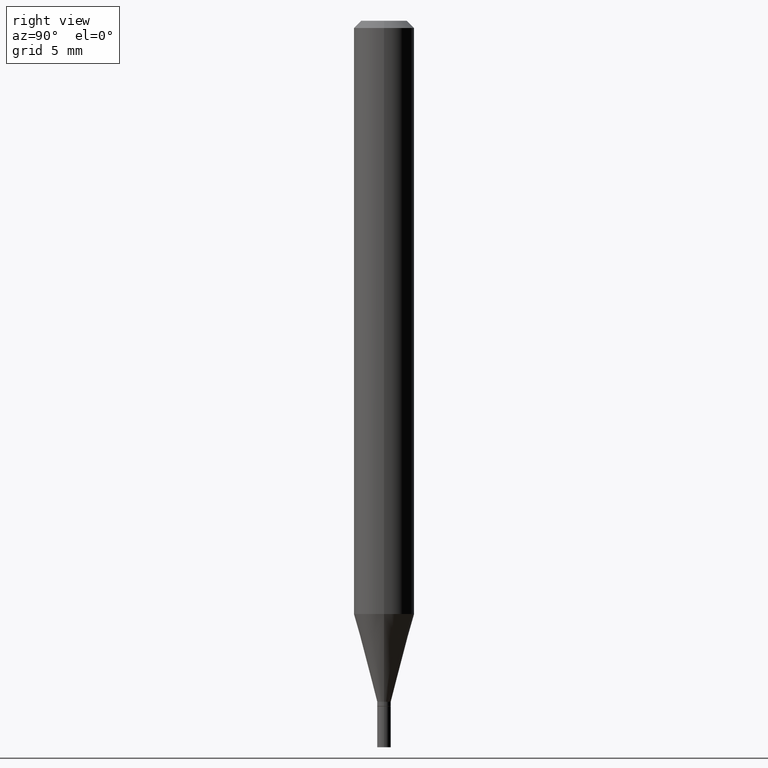
[diagram: clean part render]
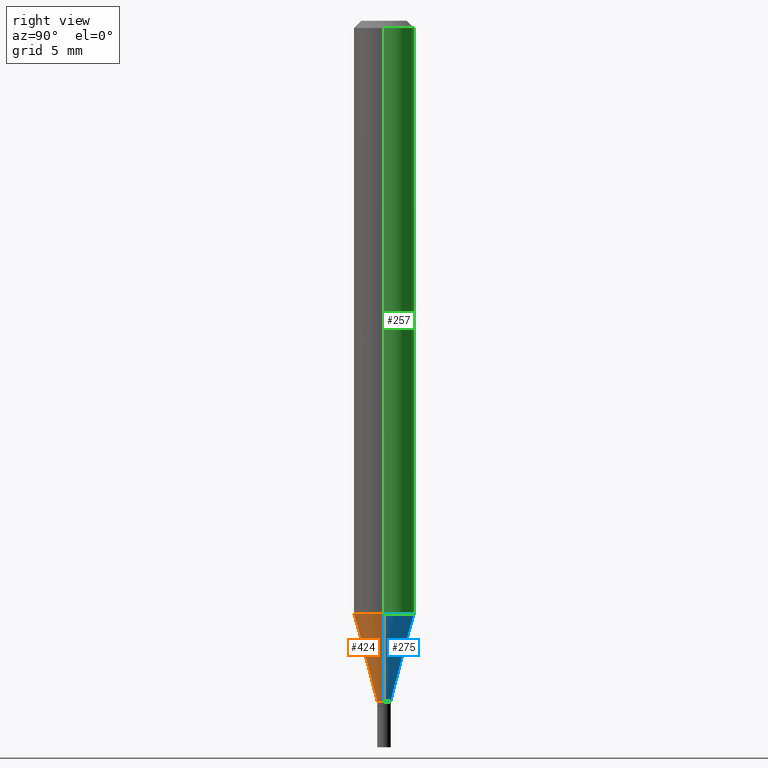
[diagram: same view with three faces highlighted in distinct colors, each labeled with its STEP entity id]
A machine part, right view with three faces highlighted in distinct colors.
Their STEP definitions:

[orange] entity #424 — the highlighted conical surface has half-angle 15 deg.
#8 = LINE ( 'NONE', #44, #34 ) ;
#14 = CARTESIAN_POINT ( 'NONE',  ( -0.06250000000000000000, -3.832959843676702294E-15, -1.224995535832909876 ) ) ;
#19 = EDGE_CURVE ( 'NONE', #153, #350, #237, .T. ) ;
#30 = EDGE_CURVE ( 'NONE', #153, #240, #8, .T. ) ;
#34 = VECTOR ( 'NONE', #402, 39.37007874015747433 ) ;
#43 = CONICAL_SURFACE ( 'NONE', #81, 0.01399999999999992223, 0.2617993877991500740 ) ;
#44 = CARTESIAN_POINT ( 'NONE',  ( -0.01399999999999992223, -4.809546779407050347E-15, -1.406000000000000139 ) ) ;
#48 = CARTESIAN_POINT ( 'NONE',  ( 2.995688370595427801E-29, -4.277049053526764910E-15, -1.224995535832909876 ) ) ;
#69 = VECTOR ( 'NONE', #299, 39.37007874015747433 ) ;
#81 = AXIS2_PLACEMENT_3D ( 'NONE', #256, #380, #363 ) ;
#103 = ORIENTED_EDGE ( 'NONE', *, *, #19, .T. ) ;
#121 = EDGE_CURVE ( 'NONE', #240, #172, #278, .T. ) ;
#136 = EDGE_LOOP ( 'NONE', ( #465, #103, #191, #384 ) ) ;
#153 = VERTEX_POINT ( 'NONE', #231 ) ;
#157 = AXIS2_PLACEMENT_3D ( 'NONE', #328, #330, #183 ) ;
#161 = CARTESIAN_POINT ( 'NONE',  ( 0.06250000000000000000, -4.713484220882155791E-15, -1.224995535832909876 ) ) ;
#164 = EDGE_CURVE ( 'NONE', #350, #172, #192, .T. ) ;
#169 = AXIS2_PLACEMENT_3D ( 'NONE', #48, #400, #218 ) ;
#172 = VERTEX_POINT ( 'NONE', #161 ) ;
#183 = DIRECTION ( 'NONE',  ( 1.000000000000000000, -6.982962677686232790E-15, 0.000000000000000000 ) ) ;
#191 = ORIENTED_EDGE ( 'NONE', *, *, #164, .T. ) ;
#192 = LINE ( 'NONE', #232, #69 ) ;
#218 = DIRECTION ( 'NONE',  ( 1.000000000000000000, -6.982962677686270655E-15, 0.000000000000000000 ) ) ;
#231 = CARTESIAN_POINT ( 'NONE',  ( -0.01399999999999992223, -4.321253311541875926E-15, -1.406000000000000139 ) ) ;
#232 = CARTESIAN_POINT ( 'NONE',  ( 0.01399999999999992223, -5.006784239901070239E-15, -1.406000000000000139 ) ) ;
#237 = CIRCLE ( 'NONE', #157, 0.01399999999999992223 ) ;
#240 = VERTEX_POINT ( 'NONE', #14 ) ;
#256 = CARTESIAN_POINT ( 'NONE',  ( 3.438329141496302499E-29, -4.909022762413463673E-15, -1.406000000000000139 ) ) ;
#278 = CIRCLE ( 'NONE', #169, 0.06250000000000000000 ) ;
#299 = DIRECTION ( 'NONE',  ( 0.2588190451025213501, 1.565188264969621968E-15, 0.9659258262890682012 ) ) ;
#328 = CARTESIAN_POINT ( 'NONE',  ( 3.438329141496302499E-29, -4.909022762413463673E-15, -1.406000000000000139 ) ) ;
#330 = DIRECTION ( 'NONE',  ( -2.445468806185136597E-29, 3.491481338843145583E-15, 1.000000000000000000 ) ) ;
#350 = VERTEX_POINT ( 'NONE', #383 ) ;
#363 = DIRECTION ( 'NONE',  ( 1.000000000000000000, -6.982962677686232790E-15, 0.000000000000000000 ) ) ;
#380 = DIRECTION ( 'NONE',  ( -2.445468806185136597E-29, 3.491481338843145583E-15, 1.000000000000000000 ) ) ;
#383 = CARTESIAN_POINT ( 'NONE',  ( 0.01399999999999992223, -5.006784239901070239E-15, -1.406000000000000139 ) ) ;
#384 = ORIENTED_EDGE ( 'NONE', *, *, #121, .F. ) ;
#396 = FACE_OUTER_BOUND ( 'NONE', #136, .T. ) ;
#400 = DIRECTION ( 'NONE',  ( -2.445468806185136597E-29, 3.491481338843145583E-15, 1.000000000000000000 ) ) ;
#402 = DIRECTION ( 'NONE',  ( -0.2588190451025213501, 5.211531920934551042E-15, 0.9659258262890682012 ) ) ;
#424 = ADVANCED_FACE ( 'NONE', ( #396 ), #43, .T. ) ;
#465 = ORIENTED_EDGE ( 'NONE', *, *, #30, .F. ) ;

[blue] entity #275 — the highlighted conical surface has half-angle 15 deg.
#7 = EDGE_CURVE ( 'NONE', #172, #240, #175, .T. ) ;
#8 = LINE ( 'NONE', #44, #34 ) ;
#14 = CARTESIAN_POINT ( 'NONE',  ( -0.06250000000000000000, -3.832959843676702294E-15, -1.224995535832909876 ) ) ;
#17 = AXIS2_PLACEMENT_3D ( 'NONE', #368, #71, #333 ) ;
#30 = EDGE_CURVE ( 'NONE', #153, #240, #8, .T. ) ;
#34 = VECTOR ( 'NONE', #402, 39.37007874015747433 ) ;
#44 = CARTESIAN_POINT ( 'NONE',  ( -0.01399999999999992223, -4.809546779407050347E-15, -1.406000000000000139 ) ) ;
#57 = DIRECTION ( 'NONE',  ( 1.000000000000000000, -6.982962677686232790E-15, 0.000000000000000000 ) ) ;
#69 = VECTOR ( 'NONE', #299, 39.37007874015747433 ) ;
#71 = DIRECTION ( 'NONE',  ( -2.445468806185136597E-29, 3.491481338843145583E-15, 1.000000000000000000 ) ) ;
#87 = CONICAL_SURFACE ( 'NONE', #147, 0.01399999999999992223, 0.2617993877991500740 ) ;
#115 = EDGE_CURVE ( 'NONE', #350, #153, #451, .T. ) ;
#144 = ORIENTED_EDGE ( 'NONE', *, *, #115, .T. ) ;
#147 = AXIS2_PLACEMENT_3D ( 'NONE', #197, #344, #57 ) ;
#150 = DIRECTION ( 'NONE',  ( -2.445468806185136597E-29, 3.491481338843145583E-15, 1.000000000000000000 ) ) ;
#153 = VERTEX_POINT ( 'NONE', #231 ) ;
#161 = CARTESIAN_POINT ( 'NONE',  ( 0.06250000000000000000, -4.713484220882155791E-15, -1.224995535832909876 ) ) ;
#164 = EDGE_CURVE ( 'NONE', #350, #172, #192, .T. ) ;
#172 = VERTEX_POINT ( 'NONE', #161 ) ;
#175 = CIRCLE ( 'NONE', #445, 0.06250000000000000000 ) ;
#192 = LINE ( 'NONE', #232, #69 ) ;
#195 = FACE_OUTER_BOUND ( 'NONE', #388, .T. ) ;
#197 = CARTESIAN_POINT ( 'NONE',  ( 3.438329141496302499E-29, -4.909022762413463673E-15, -1.406000000000000139 ) ) ;
#207 = ORIENTED_EDGE ( 'NONE', *, *, #164, .F. ) ;
#225 = CARTESIAN_POINT ( 'NONE',  ( 2.995688370595427801E-29, -4.277049053526764910E-15, -1.224995535832909876 ) ) ;
#231 = CARTESIAN_POINT ( 'NONE',  ( -0.01399999999999992223, -4.321253311541875926E-15, -1.406000000000000139 ) ) ;
#232 = CARTESIAN_POINT ( 'NONE',  ( 0.01399999999999992223, -5.006784239901070239E-15, -1.406000000000000139 ) ) ;
#240 = VERTEX_POINT ( 'NONE', #14 ) ;
#275 = ADVANCED_FACE ( 'NONE', ( #195 ), #87, .T. ) ;
#294 = DIRECTION ( 'NONE',  ( 1.000000000000000000, -6.982962677686270655E-15, 0.000000000000000000 ) ) ;
#299 = DIRECTION ( 'NONE',  ( 0.2588190451025213501, 1.565188264969621968E-15, 0.9659258262890682012 ) ) ;
#308 = ORIENTED_EDGE ( 'NONE', *, *, #30, .T. ) ;
#314 = ORIENTED_EDGE ( 'NONE', *, *, #7, .F. ) ;
#333 = DIRECTION ( 'NONE',  ( 1.000000000000000000, -6.982962677686232790E-15, 0.000000000000000000 ) ) ;
#344 = DIRECTION ( 'NONE',  ( -2.445468806185136597E-29, 3.491481338843145583E-15, 1.000000000000000000 ) ) ;
#350 = VERTEX_POINT ( 'NONE', #383 ) ;
#368 = CARTESIAN_POINT ( 'NONE',  ( 3.438329141496302499E-29, -4.909022762413463673E-15, -1.406000000000000139 ) ) ;
#383 = CARTESIAN_POINT ( 'NONE',  ( 0.01399999999999992223, -5.006784239901070239E-15, -1.406000000000000139 ) ) ;
#388 = EDGE_LOOP ( 'NONE', ( #144, #308, #314, #207 ) ) ;
#402 = DIRECTION ( 'NONE',  ( -0.2588190451025213501, 5.211531920934551042E-15, 0.9659258262890682012 ) ) ;
#445 = AXIS2_PLACEMENT_3D ( 'NONE', #225, #150, #294 ) ;
#451 = CIRCLE ( 'NONE', #17, 0.01399999999999992223 ) ;

[green] entity #257 — the highlighted cylindrical surface (edge-blend (fillet) strip) has radius 1.5875 mm, axis along (-0, 0, 1).
#7 = EDGE_CURVE ( 'NONE', #172, #240, #175, .T. ) ;
#12 = CARTESIAN_POINT ( 'NONE',  ( 0.000000000000000000, 0.000000000000000000, 0.000000000000000000 ) ) ;
#14 = CARTESIAN_POINT ( 'NONE',  ( -0.06250000000000000000, -3.832959843676702294E-15, -1.224995535832909876 ) ) ;
#18 = AXIS2_PLACEMENT_3D ( 'NONE', #466, #399, #359 ) ;
#36 = DIRECTION ( 'NONE',  ( -2.445468806185136877E-29, 3.491481338843145188E-15, 1.000000000000000000 ) ) ;
#46 = CARTESIAN_POINT ( 'NONE',  ( -0.06250000000000000000, 4.440892098500626162E-16, -3.074334431409316114E-30 ) ) ;
#50 = FACE_OUTER_BOUND ( 'NONE', #341, .T. ) ;
#53 = DIRECTION ( 'NONE',  ( -2.445468806185136597E-29, 3.491481338843145583E-15, 1.000000000000000000 ) ) ;
#54 = AXIS2_PLACEMENT_3D ( 'NONE', #12, #53, #163 ) ;
#60 = CARTESIAN_POINT ( 'NONE',  ( 0.06250000000000000000, -4.364351673553916694E-16, 3.047610484872459871E-30 ) ) ;
#85 = EDGE_CURVE ( 'NONE', #240, #168, #263, .T. ) ;
#91 = CYLINDRICAL_SURFACE ( 'NONE', #54, 0.06250000000000000000 ) ;
#109 = ORIENTED_EDGE ( 'NONE', *, *, #85, .T. ) ;
#120 = DIRECTION ( 'NONE',  ( -2.445468806185136877E-29, 3.491481338843145188E-15, 1.000000000000000000 ) ) ;
#131 = CARTESIAN_POINT ( 'NONE',  ( -0.06250000000000000000, -1.720621426954643378E-15, -0.01499999999999999944 ) ) ;
#150 = DIRECTION ( 'NONE',  ( -2.445468806185136597E-29, 3.491481338843145583E-15, 1.000000000000000000 ) ) ;
#161 = CARTESIAN_POINT ( 'NONE',  ( 0.06250000000000000000, -4.713484220882155791E-15, -1.224995535832909876 ) ) ;
#163 = DIRECTION ( 'NONE',  ( 1.000000000000000000, -6.982962677686266711E-15, 4.876176775795935793E-29 ) ) ;
#168 = VERTEX_POINT ( 'NONE', #131 ) ;
#172 = VERTEX_POINT ( 'NONE', #161 ) ;
#174 = ORIENTED_EDGE ( 'NONE', *, *, #7, .T. ) ;
#175 = CIRCLE ( 'NONE', #445, 0.06250000000000000000 ) ;
#176 = VERTEX_POINT ( 'NONE', #303 ) ;
#185 = CIRCLE ( 'NONE', #18, 0.06250000000000000000 ) ;
#225 = CARTESIAN_POINT ( 'NONE',  ( 2.995688370595427801E-29, -4.277049053526764910E-15, -1.224995535832909876 ) ) ;
#235 = VECTOR ( 'NONE', #120, 39.37007874015748143 ) ;
#240 = VERTEX_POINT ( 'NONE', #14 ) ;
#257 = ADVANCED_FACE ( 'NONE', ( #50 ), #91, .T. ) ;
#263 = LINE ( 'NONE', #46, #235 ) ;
#277 = LINE ( 'NONE', #60, #297 ) ;
#294 = DIRECTION ( 'NONE',  ( 1.000000000000000000, -6.982962677686270655E-15, 0.000000000000000000 ) ) ;
#297 = VECTOR ( 'NONE', #36, 39.37007874015748143 ) ;
#303 = CARTESIAN_POINT ( 'NONE',  ( 0.06250000000000000000, -4.888073874380388472E-16, -0.01499999999999999944 ) ) ;
#341 = EDGE_LOOP ( 'NONE', ( #174, #109, #371, #427 ) ) ;
#356 = EDGE_CURVE ( 'NONE', #172, #176, #277, .T. ) ;
#359 = DIRECTION ( 'NONE',  ( 1.000000000000000000, -6.982962677686266711E-15, 0.000000000000000000 ) ) ;
#371 = ORIENTED_EDGE ( 'NONE', *, *, #441, .F. ) ;
#399 = DIRECTION ( 'NONE',  ( -2.445468806185136597E-29, 3.491481338843145583E-15, 1.000000000000000000 ) ) ;
#427 = ORIENTED_EDGE ( 'NONE', *, *, #356, .F. ) ;
#441 = EDGE_CURVE ( 'NONE', #176, #168, #185, .T. ) ;
#445 = AXIS2_PLACEMENT_3D ( 'NONE', #225, #150, #294 ) ;
#466 = CARTESIAN_POINT ( 'NONE',  ( 3.668203209277705088E-31, -5.237222008264718399E-17, -0.01499999999999999944 ) ) ;